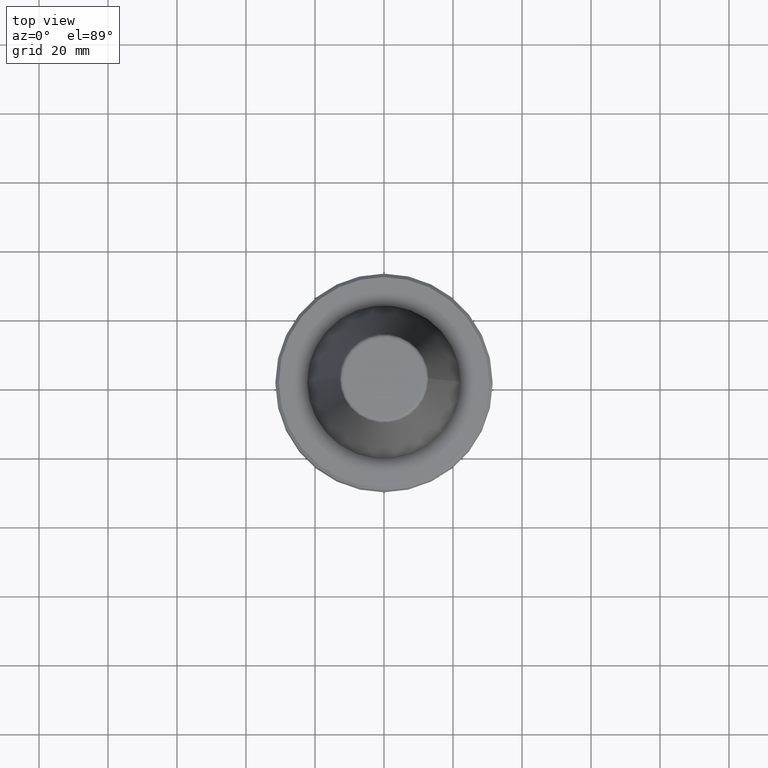
[diagram: clean part render]
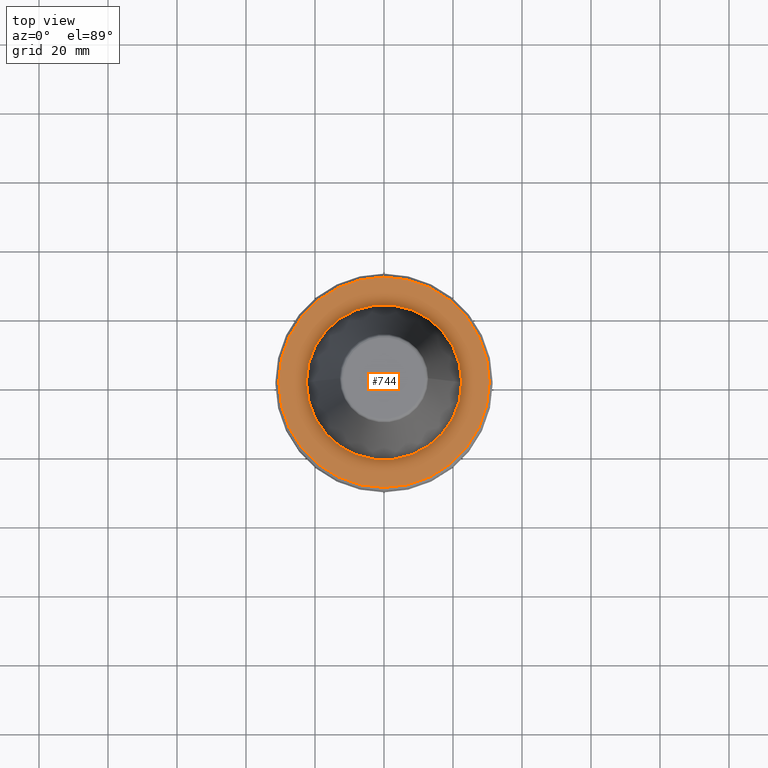
[diagram: same view with one face highlighted and labeled with its STEP entity id]
A machine part, top view. The second image highlights one B-rep face of the part: STEP entity #744.
In plain terms, the highlighted planar face has unit normal (0, 0, -1).
Its self-contained STEP definition (entity closure, byte-faithful):
#30 = CARTESIAN_POINT ( 'NONE',  ( 22.49999999999996400, 0.0000000000000000000, -67.40000000000034700 ) ) ;
#57 = CIRCLE ( 'NONE', #973, 22.49999999999996400 ) ;
#150 = CARTESIAN_POINT ( 'NONE',  ( 0.0000000000000000000, 0.0000000000000000000, -67.40000000000034700 ) ) ;
#229 = CIRCLE ( 'NONE', #610, 22.49999999999996400 ) ;
#250 = DIRECTION ( 'NONE',  ( 1.000000000000000000, 0.0000000000000000000, 0.0000000000000000000 ) ) ;
#286 = CARTESIAN_POINT ( 'NONE',  ( 0.0000000000000000000, 0.0000000000000000000, -67.40000000000034700 ) ) ;
#305 = CIRCLE ( 'NONE', #1012, 30.49999999999997200 ) ;
#313 = DIRECTION ( 'NONE',  ( -0.0000000000000000000, -0.0000000000000000000, 1.000000000000000000 ) ) ;
#316 = AXIS2_PLACEMENT_3D ( 'NONE', #150, #798, #361 ) ;
#359 = CIRCLE ( 'NONE', #681, 30.49999999999997200 ) ;
#361 = DIRECTION ( 'NONE',  ( -1.000000000000000000, 0.0000000000000000000, -0.0000000000000000000 ) ) ;
#392 = ORIENTED_EDGE ( 'NONE', *, *, #900, .T. ) ;
#425 = VERTEX_POINT ( 'NONE', #1026 ) ;
#509 = DIRECTION ( 'NONE',  ( -0.0000000000000000000, -0.0000000000000000000, 1.000000000000000000 ) ) ;
#511 = ORIENTED_EDGE ( 'NONE', *, *, #1038, .F. ) ;
#601 = DIRECTION ( 'NONE',  ( 1.000000000000000000, 0.0000000000000000000, 0.0000000000000000000 ) ) ;
#610 = AXIS2_PLACEMENT_3D ( 'NONE', #810, #797, #250 ) ;
#612 = CARTESIAN_POINT ( 'NONE',  ( 0.0000000000000000000, 0.0000000000000000000, -67.40000000000034700 ) ) ;
#681 = AXIS2_PLACEMENT_3D ( 'NONE', #612, #509, #702 ) ;
#702 = DIRECTION ( 'NONE',  ( 1.000000000000000000, 0.0000000000000000000, 0.0000000000000000000 ) ) ;
#707 = EDGE_CURVE ( 'NONE', #791, #425, #57, .T. ) ;
#729 = EDGE_LOOP ( 'NONE', ( #392, #906 ) ) ;
#744 = ADVANCED_FACE ( 'NONE', ( #813, #842 ), #993, .F. ) ;
#786 = VERTEX_POINT ( 'NONE', #956 ) ;
#791 = VERTEX_POINT ( 'NONE', #30 ) ;
#797 = DIRECTION ( 'NONE',  ( -0.0000000000000000000, -0.0000000000000000000, 1.000000000000000000 ) ) ;
#798 = DIRECTION ( 'NONE',  ( 0.0000000000000000000, 0.0000000000000000000, -1.000000000000000000 ) ) ;
#807 = EDGE_LOOP ( 'NONE', ( #868, #511 ) ) ;
#810 = CARTESIAN_POINT ( 'NONE',  ( 0.0000000000000000000, 0.0000000000000000000, -67.40000000000034700 ) ) ;
#813 = FACE_BOUND ( 'NONE', #807, .T. ) ;
#822 = DIRECTION ( 'NONE',  ( 1.000000000000000000, 0.0000000000000000000, 0.0000000000000000000 ) ) ;
#824 = EDGE_CURVE ( 'NONE', #786, #1039, #359, .T. ) ;
#842 = FACE_OUTER_BOUND ( 'NONE', #729, .T. ) ;
#868 = ORIENTED_EDGE ( 'NONE', *, *, #707, .F. ) ;
#900 = EDGE_CURVE ( 'NONE', #1039, #786, #305, .T. ) ;
#906 = ORIENTED_EDGE ( 'NONE', *, *, #824, .T. ) ;
#923 = DIRECTION ( 'NONE',  ( -0.0000000000000000000, -0.0000000000000000000, 1.000000000000000000 ) ) ;
#945 = CARTESIAN_POINT ( 'NONE',  ( 0.0000000000000000000, 0.0000000000000000000, -67.40000000000034700 ) ) ;
#956 = CARTESIAN_POINT ( 'NONE',  ( 30.49999999999997200, 3.796405077356798300E-015, -67.40000000000034700 ) ) ;
#973 = AXIS2_PLACEMENT_3D ( 'NONE', #286, #313, #822 ) ;
#993 = PLANE ( 'NONE',  #316 ) ;
#1012 = AXIS2_PLACEMENT_3D ( 'NONE', #945, #923, #601 ) ;
#1026 = CARTESIAN_POINT ( 'NONE',  ( -22.49999999999996400, 2.755455298081540400E-015, -67.40000000000034700 ) ) ;
#1033 = CARTESIAN_POINT ( 'NONE',  ( -30.49999999999997200, 0.0000000000000000000, -67.40000000000034700 ) ) ;
#1038 = EDGE_CURVE ( 'NONE', #425, #791, #229, .T. ) ;
#1039 = VERTEX_POINT ( 'NONE', #1033 ) ;